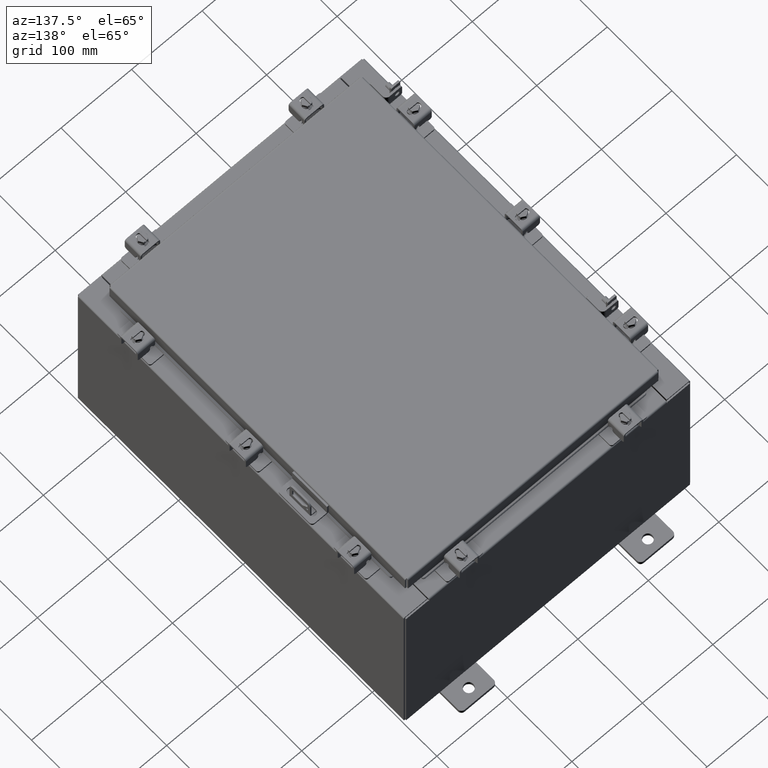
[diagram: clean part render]
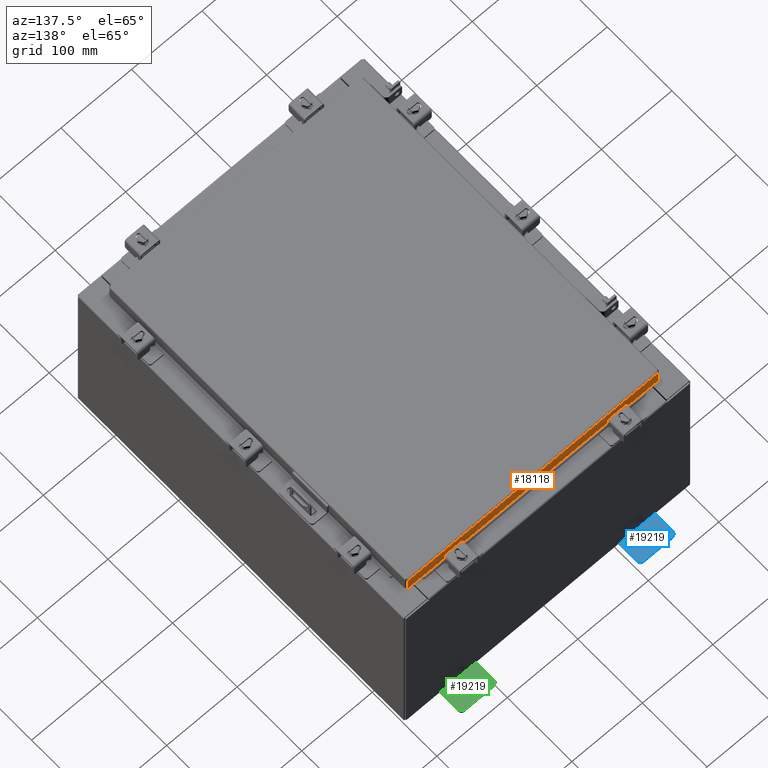
[diagram: same view with three faces highlighted in distinct colors, each labeled with its STEP entity id]
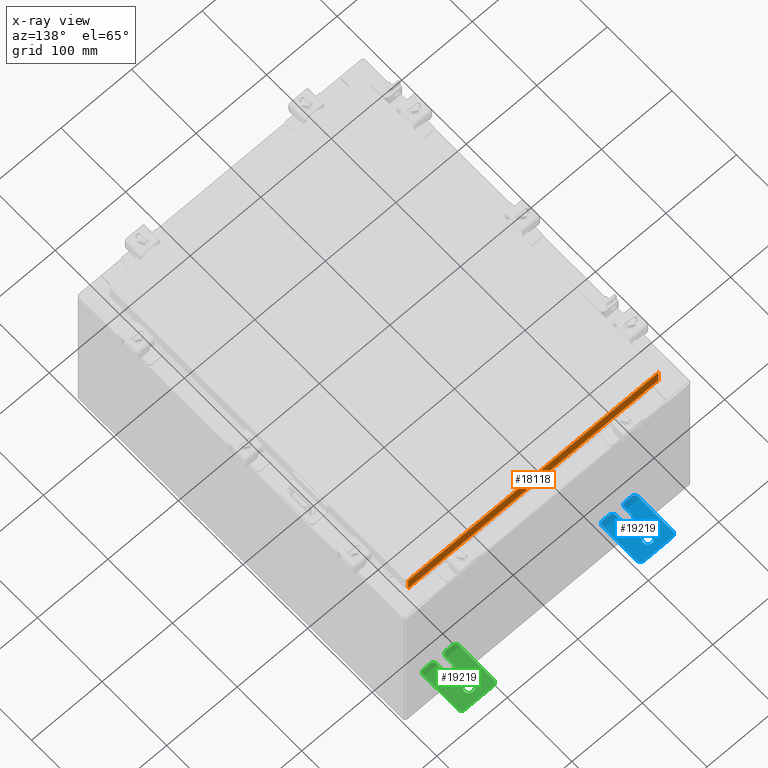
[diagram: x-ray of the same camera — body ghosted, the three highlighted faces saturated]
A machine part, auxiliary view with three faces highlighted in distinct colors.
The next image is the same camera in x-ray (body ghosted, the three faces saturated) — at least one of them is partly hidden behind the body in this view.
Their STEP definitions:

[orange] entity #18118 — the highlighted planar face has unit normal (0, -1, -0).
#8 = VECTOR ( 'NONE', #1733, 39.37007874015748100 ) ;
#481 = DIRECTION ( 'NONE',  ( 0.0000000000000000000, 2.818880942772353800E-015, -1.000000000000000000 ) ) ;
#1550 = CARTESIAN_POINT ( 'NONE',  ( -7.078000000000003800, 9.093999999999999400, -0.8500000000000014200 ) ) ;
#1733 = DIRECTION ( 'NONE',  ( -1.000000000000000000, -1.359980617386811900E-031, -7.719265311286419400E-017 ) ) ;
#1753 = CARTESIAN_POINT ( 'NONE',  ( -6.989157864376273300, 9.093999999999995900, -0.07469999999999978000 ) ) ;
#1901 = VECTOR ( 'NONE', #12192, 39.37007874015748100 ) ;
#1936 = CARTESIAN_POINT ( 'NONE',  ( -6.989157864376273300, 9.093999999999995900, -0.08769999999999951400 ) ) ;
#2395 = ORIENTED_EDGE ( 'NONE', *, *, #10742, .F. ) ;
#2611 = ORIENTED_EDGE ( 'NONE', *, *, #14333, .T. ) ;
#3445 = VERTEX_POINT ( 'NONE', #15096 ) ;
#3724 = VERTEX_POINT ( 'NONE', #11567 ) ;
#3997 = VERTEX_POINT ( 'NONE', #14955 ) ;
#4133 = PLANE ( 'NONE',  #10218 ) ;
#5081 = CARTESIAN_POINT ( 'NONE',  ( 6.239157864376261700, 9.093999999999999400, -0.8500000000000018700 ) ) ;
#7230 = CARTESIAN_POINT ( 'NONE',  ( 6.989157864376266200, 9.093999999999999400, -0.8499999999999996400 ) ) ;
#7672 = DIRECTION ( 'NONE',  ( 3.535949605205710500E-031, -1.000000000000000000, -2.818880942772353800E-015 ) ) ;
#8164 = VECTOR ( 'NONE', #481, 39.37007874015748100 ) ;
#8202 = VECTOR ( 'NONE', #15164, 39.37007874015748100 ) ;
#10085 = LINE ( 'NONE', #1753, #1901 ) ;
#10218 = AXIS2_PLACEMENT_3D ( 'NONE', #17968, #7672, #19675 ) ;
#10387 = CARTESIAN_POINT ( 'NONE',  ( -6.239157864376272400, 9.093999999999999400, -0.8500000000000018700 ) ) ;
#10742 = EDGE_CURVE ( 'NONE', #19494, #16024, #13096, .T. ) ;
#11567 = CARTESIAN_POINT ( 'NONE',  ( -6.239157864376272400, 9.093999999999999400, -0.8500000000000018700 ) ) ;
#11842 = ORIENTED_EDGE ( 'NONE', *, *, #12168, .F. ) ;
#12168 = EDGE_CURVE ( 'NONE', #3997, #22422, #13917, .T. ) ;
#12169 = CARTESIAN_POINT ( 'NONE',  ( -7.078000000000003800, 9.093999999999995900, -0.08770000000000007000 ) ) ;
#12192 = DIRECTION ( 'NONE',  ( -0.0000000000000000000, 2.818880942772353800E-015, -1.000000000000000000 ) ) ;
#12747 = LINE ( 'NONE', #17763, #8164 ) ;
#13096 = LINE ( 'NONE', #1550, #21740 ) ;
#13241 = EDGE_CURVE ( 'NONE', #3445, #3724, #17354, .T. ) ;
#13454 = CARTESIAN_POINT ( 'NONE',  ( -7.078000000000003800, 9.093999999999999400, -0.8500000000000014200 ) ) ;
#13473 = EDGE_CURVE ( 'NONE', #22422, #3445, #10085, .T. ) ;
#13917 = LINE ( 'NONE', #12169, #8 ) ;
#14333 = EDGE_CURVE ( 'NONE', #3997, #16024, #12747, .T. ) ;
#14955 = CARTESIAN_POINT ( 'NONE',  ( 6.989157864376266200, 9.093999999999995900, -0.08769999999999897300 ) ) ;
#15096 = CARTESIAN_POINT ( 'NONE',  ( -6.989157864376273300, 9.093999999999999400, -0.8500000000000014200 ) ) ;
#15164 = DIRECTION ( 'NONE',  ( 1.000000000000000000, 4.379057701015054300E-047, 1.254380613084043100E-016 ) ) ;
#15287 = VECTOR ( 'NONE', #20759, 39.37007874015748100 ) ;
#15333 = ORIENTED_EDGE ( 'NONE', *, *, #13473, .F. ) ;
#15851 = ORIENTED_EDGE ( 'NONE', *, *, #18502, .F. ) ;
#16024 = VERTEX_POINT ( 'NONE', #7230 ) ;
#16354 = LINE ( 'NONE', #10387, #15287 ) ;
#17354 = LINE ( 'NONE', #13454, #8202 ) ;
#17763 = CARTESIAN_POINT ( 'NONE',  ( 6.989157864376265300, 9.093999999999995900, 2.589571694958335700E-014 ) ) ;
#17960 = EDGE_LOOP ( 'NONE', ( #11842, #2611, #2395, #15851, #21130, #15333 ) ) ;
#17968 = CARTESIAN_POINT ( 'NONE',  ( -3.215592570974071400E-030, 9.093999999999995900, 2.589571694958335700E-014 ) ) ;
#18118 = ADVANCED_FACE ( 'NONE', ( #20140 ), #4133, .F. ) ;
#18502 = EDGE_CURVE ( 'NONE', #3724, #19494, #16354, .T. ) ;
#19494 = VERTEX_POINT ( 'NONE', #5081 ) ;
#19675 = DIRECTION ( 'NONE',  ( 0.0000000000000000000, 2.818880942772353800E-015, -1.000000000000000000 ) ) ;
#20140 = FACE_OUTER_BOUND ( 'NONE', #17960, .T. ) ;
#20759 = DIRECTION ( 'NONE',  ( 1.000000000000000000, -0.0000000000000000000, -0.0000000000000000000 ) ) ;
#21130 = ORIENTED_EDGE ( 'NONE', *, *, #13241, .F. ) ;
#21740 = VECTOR ( 'NONE', #22331, 39.37007874015748100 ) ;
#22331 = DIRECTION ( 'NONE',  ( 1.000000000000000000, 4.379057701015054300E-047, 1.254380613084043100E-016 ) ) ;
#22422 = VERTEX_POINT ( 'NONE', #1936 ) ;

[blue] entity #19219 — the highlighted planar face has unit normal (0, 0, 1).
#50 = VECTOR ( 'NONE', #20684, 39.37007874015748100 ) ;
#85 = CARTESIAN_POINT ( 'NONE',  ( 0.0000000000000000000, -0.6249999999999992200, 0.2500000000000005000 ) ) ;
#375 = AXIS2_PLACEMENT_3D ( 'NONE', #15647, #15494, #15347 ) ;
#517 = CARTESIAN_POINT ( 'NONE',  ( 0.0000000000000000000, -1.060000000000001200, 0.9999999999999988900 ) ) ;
#581 = DIRECTION ( 'NONE',  ( -6.556435184794182400E-016, -1.000000000000000000, -1.639108796198545600E-016 ) ) ;
#599 = LINE ( 'NONE', #18949, #50 ) ;
#780 = AXIS2_PLACEMENT_3D ( 'NONE', #1659, #1503, #1431 ) ;
#1104 = VERTEX_POINT ( 'NONE', #19374 ) ;
#1231 = ORIENTED_EDGE ( 'NONE', *, *, #8511, .T. ) ;
#1301 = EDGE_LOOP ( 'NONE', ( #3979, #18891, #19016, #12081, #20039, #13696, #20471, #16323, #20817, #5881, #19090, #14076, #7682, #1231 ) ) ;
#1325 = CARTESIAN_POINT ( 'NONE',  ( 0.0000000000000000000, -1.250000000000003100, 0.4400000000000020000 ) ) ;
#1431 = DIRECTION ( 'NONE',  ( -6.523827964459551700E-016, -1.000000000000000000, 0.0000000000000000000 ) ) ;
#1503 = DIRECTION ( 'NONE',  ( -1.000000000000000000, 6.523827964459549700E-016, 5.163192708025532000E-017 ) ) ;
#1659 = CARTESIAN_POINT ( 'NONE',  ( 4.780733988912460100E-016, -0.6249999999999993300, 5.858939755051854500E-017 ) ) ;
#1724 = CIRCLE ( 'NONE', #20113, 0.2499999999999999200 ) ;
#2053 = CIRCLE ( 'NONE', #21923, 0.1900000000000011100 ) ;
#2094 = VERTEX_POINT ( 'NONE', #2496 ) ;
#2195 = AXIS2_PLACEMENT_3D ( 'NONE', #19101, #8812, #20865 ) ;
#2244 = VERTEX_POINT ( 'NONE', #517 ) ;
#2273 = CARTESIAN_POINT ( 'NONE',  ( 0.0000000000000000000, 1.059999999999993600, -0.8100000000000089400 ) ) ;
#2278 = CIRCLE ( 'NONE', #2195, 0.1900000000000011400 ) ;
#2400 = EDGE_CURVE ( 'NONE', #7145, #13455, #10559, .T. ) ;
#2428 = EDGE_CURVE ( 'NONE', #19589, #9078, #4825, .T. ) ;
#2496 = CARTESIAN_POINT ( 'NONE',  ( 0.0000000000000000000, -1.250000000000004700, -0.4400000000000002200 ) ) ;
#2922 = ORIENTED_EDGE ( 'NONE', *, *, #4963, .F. ) ;
#3048 = LINE ( 'NONE', #19570, #7177 ) ;
#3116 = CARTESIAN_POINT ( 'NONE',  ( 0.0000000000000000000, -1.250000000000002400, 0.8099999999999980500 ) ) ;
#3225 = DIRECTION ( 'NONE',  ( 1.000000000000000000, -0.0000000000000000000, -5.163192708025532000E-017 ) ) ;
#3389 = VECTOR ( 'NONE', #5737, 39.37007874015748100 ) ;
#3741 = DIRECTION ( 'NONE',  ( 1.000000000000000000, 0.0000000000000000000, -0.0000000000000000000 ) ) ;
#3943 = DIRECTION ( 'NONE',  ( -0.0000000000000000000, 0.0000000000000000000, -1.000000000000000000 ) ) ;
#3979 = ORIENTED_EDGE ( 'NONE', *, *, #18068, .T. ) ;
#4037 = DIRECTION ( 'NONE',  ( 0.0000000000000000000, 0.0000000000000000000, -1.000000000000000000 ) ) ;
#4825 = CIRCLE ( 'NONE', #780, 0.2499999999999999200 ) ;
#4963 = EDGE_CURVE ( 'NONE', #1104, #16336, #11723, .T. ) ;
#5737 = DIRECTION ( 'NONE',  ( 0.0000000000000000000, -1.000000000000000000, 1.639108796198558100E-015 ) ) ;
#5881 = ORIENTED_EDGE ( 'NONE', *, *, #2400, .T. ) ;
#6231 = EDGE_CURVE ( 'NONE', #15792, #19589, #19699, .T. ) ;
#6246 = CARTESIAN_POINT ( 'NONE',  ( 1.928684683526972300E-016, -1.060000000000002100, 0.2500000000000005000 ) ) ;
#6962 = CARTESIAN_POINT ( 'NONE',  ( 1.928684683526964400E-016, -1.060000000000003400, -0.2499999999999994400 ) ) ;
#7043 = DIRECTION ( 'NONE',  ( 0.0000000000000000000, 1.000000000000000000, -1.639108796198558100E-015 ) ) ;
#7145 = VERTEX_POINT ( 'NONE', #10921 ) ;
#7177 = VECTOR ( 'NONE', #581, 39.37007874015748100 ) ;
#7331 = CARTESIAN_POINT ( 'NONE',  ( 0.0000000000000000000, -1.060000000000001600, 0.8099999999999978300 ) ) ;
#7518 = CIRCLE ( 'NONE', #21899, 0.1900000000000011100 ) ;
#7523 = CARTESIAN_POINT ( 'NONE',  ( 0.0000000000000000000, 1.249999999999997600, 0.9999999999999951200 ) ) ;
#7547 = CARTESIAN_POINT ( 'NONE',  ( 0.0000000000000000000, 1.059999999999996500, 0.9999999999999953400 ) ) ;
#7575 = EDGE_CURVE ( 'NONE', #13455, #19965, #15078, .T. ) ;
#7682 = ORIENTED_EDGE ( 'NONE', *, *, #18178, .T. ) ;
#8132 = CARTESIAN_POINT ( 'NONE',  ( 4.168508244714285900E-016, 0.6249999999999992200, 0.2499999999999999200 ) ) ;
#8399 = DIRECTION ( 'NONE',  ( 0.0000000000000000000, 0.0000000000000000000, -1.000000000000000000 ) ) ;
#8511 = EDGE_CURVE ( 'NONE', #15466, #17481, #18285, .T. ) ;
#8539 = DIRECTION ( 'NONE',  ( 1.000000000000000000, 0.0000000000000000000, -0.0000000000000000000 ) ) ;
#8550 = FACE_OUTER_BOUND ( 'NONE', #1301, .T. ) ;
#8605 = CARTESIAN_POINT ( 'NONE',  ( 0.0000000000000000000, -1.060000000000004100, -0.8100000000000050500 ) ) ;
#8622 = EDGE_CURVE ( 'NONE', #19965, #11545, #7518, .T. ) ;
#8627 = CARTESIAN_POINT ( 'NONE',  ( 0.0000000000000000000, -1.060000000000003400, -0.4400000000000005000 ) ) ;
#8812 = DIRECTION ( 'NONE',  ( 1.000000000000000000, 0.0000000000000000000, -0.0000000000000000000 ) ) ;
#9064 = DIRECTION ( 'NONE',  ( 0.0000000000000000000, 0.0000000000000000000, -1.000000000000000000 ) ) ;
#9078 = VERTEX_POINT ( 'NONE', #13823 ) ;
#9488 = AXIS2_PLACEMENT_3D ( 'NONE', #8627, #20658, #10373 ) ;
#9703 = CARTESIAN_POINT ( 'NONE',  ( 0.0000000000000000000, 1.059999999999993400, -1.000000000000010000 ) ) ;
#9768 = EDGE_CURVE ( 'NONE', #16336, #1104, #1724, .T. ) ;
#9862 = EDGE_CURVE ( 'NONE', #2094, #7145, #599, .T. ) ;
#9913 = LINE ( 'NONE', #11362, #18506 ) ;
#10373 = DIRECTION ( 'NONE',  ( 0.0000000000000000000, 0.0000000000000000000, -1.000000000000000000 ) ) ;
#10530 = VECTOR ( 'NONE', #7043, 39.37007874015748100 ) ;
#10559 = CIRCLE ( 'NONE', #22157, 0.1900000000000011100 ) ;
#10729 = CARTESIAN_POINT ( 'NONE',  ( 6.829619984160658000E-017, -1.250000000000003800, 0.2500000000000005000 ) ) ;
#10894 = LINE ( 'NONE', #14380, #14898 ) ;
#10921 = CARTESIAN_POINT ( 'NONE',  ( 0.0000000000000000000, -1.250000000000005300, -0.8100000000000047200 ) ) ;
#11362 = CARTESIAN_POINT ( 'NONE',  ( 0.0000000000000000000, -1.250000000000002200, 0.9999999999999992200 ) ) ;
#11399 = EDGE_CURVE ( 'NONE', #11437, #2094, #14467, .T. ) ;
#11437 = VERTEX_POINT ( 'NONE', #6962 ) ;
#11489 = AXIS2_PLACEMENT_3D ( 'NONE', #14144, #3741, #15839 ) ;
#11545 = VERTEX_POINT ( 'NONE', #12341 ) ;
#11688 = EDGE_CURVE ( 'NONE', #9078, #11437, #3048, .T. ) ;
#11723 = CIRCLE ( 'NONE', #375, 0.2499999999999999200 ) ;
#12081 = ORIENTED_EDGE ( 'NONE', *, *, #19578, .T. ) ;
#12341 = CARTESIAN_POINT ( 'NONE',  ( 0.0000000000000000000, 1.249999999999994700, -0.8100000000000092700 ) ) ;
#12557 = VERTEX_POINT ( 'NONE', #1325 ) ;
#12616 = CARTESIAN_POINT ( 'NONE',  ( 0.0000000000000000000, 0.0000000000000000000, 0.0000000000000000000 ) ) ;
#12647 = LINE ( 'NONE', #7523, #3389 ) ;
#13455 = VERTEX_POINT ( 'NONE', #20655 ) ;
#13644 = CARTESIAN_POINT ( 'NONE',  ( 4.039428427013647300E-016, 0.6249999999999992200, -9.783840404509077400E-018 ) ) ;
#13696 = ORIENTED_EDGE ( 'NONE', *, *, #2428, .T. ) ;
#13823 = CARTESIAN_POINT ( 'NONE',  ( 4.780733988912460100E-016, -0.6249999999999993300, -0.2499999999999998600 ) ) ;
#13888 = EDGE_LOOP ( 'NONE', ( #2922, #21437 ) ) ;
#13911 = CARTESIAN_POINT ( 'NONE',  ( 0.0000000000000000000, -1.250000000000005600, -1.000000000000006200 ) ) ;
#14063 = CARTESIAN_POINT ( 'NONE',  ( 0.0000000000000000000, 1.249999999999997300, 0.8099999999999935000 ) ) ;
#14076 = ORIENTED_EDGE ( 'NONE', *, *, #8622, .T. ) ;
#14144 = CARTESIAN_POINT ( 'NONE',  ( 0.0000000000000000000, 1.059999999999996300, 0.8099999999999938400 ) ) ;
#14334 = PLANE ( 'NONE',  #16994 ) ;
#14380 = CARTESIAN_POINT ( 'NONE',  ( 0.0000000000000000000, 1.249999999999994200, -1.000000000000010400 ) ) ;
#14438 = DIRECTION ( 'NONE',  ( 1.000000000000000000, 0.0000000000000000000, -0.0000000000000000000 ) ) ;
#14467 = CIRCLE ( 'NONE', #9488, 0.1900000000000011100 ) ;
#14617 = VECTOR ( 'NONE', #15891, 39.37007874015748100 ) ;
#14898 = VECTOR ( 'NONE', #16074, 39.37007874015748100 ) ;
#15078 = LINE ( 'NONE', #13911, #10530 ) ;
#15296 = VERTEX_POINT ( 'NONE', #3116 ) ;
#15340 = DIRECTION ( 'NONE',  ( -5.163192708025533800E-017, 0.0000000000000000000, -1.000000000000000000 ) ) ;
#15347 = DIRECTION ( 'NONE',  ( -5.163192708025533800E-017, 0.0000000000000000000, -1.000000000000000000 ) ) ;
#15466 = VERTEX_POINT ( 'NONE', #14063 ) ;
#15494 = DIRECTION ( 'NONE',  ( 1.000000000000000000, -0.0000000000000000000, -5.163192708025532000E-017 ) ) ;
#15647 = CARTESIAN_POINT ( 'NONE',  ( 4.039428427013647300E-016, 0.6249999999999992200, -9.783840404509077400E-018 ) ) ;
#15792 = VERTEX_POINT ( 'NONE', #6246 ) ;
#15839 = DIRECTION ( 'NONE',  ( 0.0000000000000000000, 0.0000000000000000000, -1.000000000000000000 ) ) ;
#15891 = DIRECTION ( 'NONE',  ( 6.556435184794182400E-016, 1.000000000000000000, 0.0000000000000000000 ) ) ;
#15965 = DIRECTION ( 'NONE',  ( 1.000000000000000000, 0.0000000000000000000, -0.0000000000000000000 ) ) ;
#16074 = DIRECTION ( 'NONE',  ( 0.0000000000000000000, 1.639108796198553600E-015, 1.000000000000000000 ) ) ;
#16323 = ORIENTED_EDGE ( 'NONE', *, *, #11399, .T. ) ;
#16336 = VERTEX_POINT ( 'NONE', #8132 ) ;
#16994 = AXIS2_PLACEMENT_3D ( 'NONE', #12616, #15965, #3943 ) ;
#17376 = EDGE_CURVE ( 'NONE', #2244, #15296, #2053, .T. ) ;
#17481 = VERTEX_POINT ( 'NONE', #7547 ) ;
#18068 = EDGE_CURVE ( 'NONE', #17481, #2244, #12647, .T. ) ;
#18178 = EDGE_CURVE ( 'NONE', #11545, #15466, #10894, .T. ) ;
#18242 = FACE_BOUND ( 'NONE', #13888, .T. ) ;
#18285 = CIRCLE ( 'NONE', #11489, 0.1900000000000011100 ) ;
#18506 = VECTOR ( 'NONE', #21681, 39.37007874015748100 ) ;
#18879 = EDGE_CURVE ( 'NONE', #15296, #12557, #9913, .T. ) ;
#18891 = ORIENTED_EDGE ( 'NONE', *, *, #17376, .T. ) ;
#18949 = CARTESIAN_POINT ( 'NONE',  ( 0.0000000000000000000, -1.250000000000002200, 0.9999999999999992200 ) ) ;
#19016 = ORIENTED_EDGE ( 'NONE', *, *, #18879, .T. ) ;
#19090 = ORIENTED_EDGE ( 'NONE', *, *, #7575, .T. ) ;
#19101 = CARTESIAN_POINT ( 'NONE',  ( 0.0000000000000000000, -1.060000000000002100, 0.4400000000000016700 ) ) ;
#19219 = ADVANCED_FACE ( 'NONE', ( #18242, #8550 ), #14334, .T. ) ;
#19345 = DIRECTION ( 'NONE',  ( 1.000000000000000000, 0.0000000000000000000, -0.0000000000000000000 ) ) ;
#19374 = CARTESIAN_POINT ( 'NONE',  ( 3.910348609313009100E-016, 0.6249999999999992200, -0.2499999999999999200 ) ) ;
#19570 = CARTESIAN_POINT ( 'NONE',  ( 4.780733988912460100E-016, -0.6249999999999993300, -0.2499999999999993900 ) ) ;
#19578 = EDGE_CURVE ( 'NONE', #12557, #15792, #2278, .T. ) ;
#19589 = VERTEX_POINT ( 'NONE', #85 ) ;
#19699 = LINE ( 'NONE', #10729, #14617 ) ;
#19965 = VERTEX_POINT ( 'NONE', #9703 ) ;
#20039 = ORIENTED_EDGE ( 'NONE', *, *, #6231, .T. ) ;
#20113 = AXIS2_PLACEMENT_3D ( 'NONE', #13644, #3225, #15340 ) ;
#20471 = ORIENTED_EDGE ( 'NONE', *, *, #11688, .T. ) ;
#20655 = CARTESIAN_POINT ( 'NONE',  ( 0.0000000000000000000, -1.060000000000004500, -1.000000000000006400 ) ) ;
#20658 = DIRECTION ( 'NONE',  ( 1.000000000000000000, 0.0000000000000000000, -0.0000000000000000000 ) ) ;
#20684 = DIRECTION ( 'NONE',  ( 0.0000000000000000000, -1.639108796198553600E-015, -1.000000000000000000 ) ) ;
#20817 = ORIENTED_EDGE ( 'NONE', *, *, #9862, .T. ) ;
#20865 = DIRECTION ( 'NONE',  ( 0.0000000000000000000, 0.0000000000000000000, -1.000000000000000000 ) ) ;
#21437 = ORIENTED_EDGE ( 'NONE', *, *, #9768, .F. ) ;
#21681 = DIRECTION ( 'NONE',  ( 0.0000000000000000000, -1.639108796198553600E-015, -1.000000000000000000 ) ) ;
#21899 = AXIS2_PLACEMENT_3D ( 'NONE', #2273, #14438, #4037 ) ;
#21923 = AXIS2_PLACEMENT_3D ( 'NONE', #7331, #19345, #9064 ) ;
#22157 = AXIS2_PLACEMENT_3D ( 'NONE', #8605, #8539, #8399 ) ;

[green] entity #19219 — the highlighted planar face has unit normal (0, 0, 1).
#50 = VECTOR ( 'NONE', #20684, 39.37007874015748100 ) ;
#85 = CARTESIAN_POINT ( 'NONE',  ( 0.0000000000000000000, -0.6249999999999992200, 0.2500000000000005000 ) ) ;
#375 = AXIS2_PLACEMENT_3D ( 'NONE', #15647, #15494, #15347 ) ;
#517 = CARTESIAN_POINT ( 'NONE',  ( 0.0000000000000000000, -1.060000000000001200, 0.9999999999999988900 ) ) ;
#581 = DIRECTION ( 'NONE',  ( -6.556435184794182400E-016, -1.000000000000000000, -1.639108796198545600E-016 ) ) ;
#599 = LINE ( 'NONE', #18949, #50 ) ;
#780 = AXIS2_PLACEMENT_3D ( 'NONE', #1659, #1503, #1431 ) ;
#1104 = VERTEX_POINT ( 'NONE', #19374 ) ;
#1231 = ORIENTED_EDGE ( 'NONE', *, *, #8511, .T. ) ;
#1301 = EDGE_LOOP ( 'NONE', ( #3979, #18891, #19016, #12081, #20039, #13696, #20471, #16323, #20817, #5881, #19090, #14076, #7682, #1231 ) ) ;
#1325 = CARTESIAN_POINT ( 'NONE',  ( 0.0000000000000000000, -1.250000000000003100, 0.4400000000000020000 ) ) ;
#1431 = DIRECTION ( 'NONE',  ( -6.523827964459551700E-016, -1.000000000000000000, 0.0000000000000000000 ) ) ;
#1503 = DIRECTION ( 'NONE',  ( -1.000000000000000000, 6.523827964459549700E-016, 5.163192708025532000E-017 ) ) ;
#1659 = CARTESIAN_POINT ( 'NONE',  ( 4.780733988912460100E-016, -0.6249999999999993300, 5.858939755051854500E-017 ) ) ;
#1724 = CIRCLE ( 'NONE', #20113, 0.2499999999999999200 ) ;
#2053 = CIRCLE ( 'NONE', #21923, 0.1900000000000011100 ) ;
#2094 = VERTEX_POINT ( 'NONE', #2496 ) ;
#2195 = AXIS2_PLACEMENT_3D ( 'NONE', #19101, #8812, #20865 ) ;
#2244 = VERTEX_POINT ( 'NONE', #517 ) ;
#2273 = CARTESIAN_POINT ( 'NONE',  ( 0.0000000000000000000, 1.059999999999993600, -0.8100000000000089400 ) ) ;
#2278 = CIRCLE ( 'NONE', #2195, 0.1900000000000011400 ) ;
#2400 = EDGE_CURVE ( 'NONE', #7145, #13455, #10559, .T. ) ;
#2428 = EDGE_CURVE ( 'NONE', #19589, #9078, #4825, .T. ) ;
#2496 = CARTESIAN_POINT ( 'NONE',  ( 0.0000000000000000000, -1.250000000000004700, -0.4400000000000002200 ) ) ;
#2922 = ORIENTED_EDGE ( 'NONE', *, *, #4963, .F. ) ;
#3048 = LINE ( 'NONE', #19570, #7177 ) ;
#3116 = CARTESIAN_POINT ( 'NONE',  ( 0.0000000000000000000, -1.250000000000002400, 0.8099999999999980500 ) ) ;
#3225 = DIRECTION ( 'NONE',  ( 1.000000000000000000, -0.0000000000000000000, -5.163192708025532000E-017 ) ) ;
#3389 = VECTOR ( 'NONE', #5737, 39.37007874015748100 ) ;
#3741 = DIRECTION ( 'NONE',  ( 1.000000000000000000, 0.0000000000000000000, -0.0000000000000000000 ) ) ;
#3943 = DIRECTION ( 'NONE',  ( -0.0000000000000000000, 0.0000000000000000000, -1.000000000000000000 ) ) ;
#3979 = ORIENTED_EDGE ( 'NONE', *, *, #18068, .T. ) ;
#4037 = DIRECTION ( 'NONE',  ( 0.0000000000000000000, 0.0000000000000000000, -1.000000000000000000 ) ) ;
#4825 = CIRCLE ( 'NONE', #780, 0.2499999999999999200 ) ;
#4963 = EDGE_CURVE ( 'NONE', #1104, #16336, #11723, .T. ) ;
#5737 = DIRECTION ( 'NONE',  ( 0.0000000000000000000, -1.000000000000000000, 1.639108796198558100E-015 ) ) ;
#5881 = ORIENTED_EDGE ( 'NONE', *, *, #2400, .T. ) ;
#6231 = EDGE_CURVE ( 'NONE', #15792, #19589, #19699, .T. ) ;
#6246 = CARTESIAN_POINT ( 'NONE',  ( 1.928684683526972300E-016, -1.060000000000002100, 0.2500000000000005000 ) ) ;
#6962 = CARTESIAN_POINT ( 'NONE',  ( 1.928684683526964400E-016, -1.060000000000003400, -0.2499999999999994400 ) ) ;
#7043 = DIRECTION ( 'NONE',  ( 0.0000000000000000000, 1.000000000000000000, -1.639108796198558100E-015 ) ) ;
#7145 = VERTEX_POINT ( 'NONE', #10921 ) ;
#7177 = VECTOR ( 'NONE', #581, 39.37007874015748100 ) ;
#7331 = CARTESIAN_POINT ( 'NONE',  ( 0.0000000000000000000, -1.060000000000001600, 0.8099999999999978300 ) ) ;
#7518 = CIRCLE ( 'NONE', #21899, 0.1900000000000011100 ) ;
#7523 = CARTESIAN_POINT ( 'NONE',  ( 0.0000000000000000000, 1.249999999999997600, 0.9999999999999951200 ) ) ;
#7547 = CARTESIAN_POINT ( 'NONE',  ( 0.0000000000000000000, 1.059999999999996500, 0.9999999999999953400 ) ) ;
#7575 = EDGE_CURVE ( 'NONE', #13455, #19965, #15078, .T. ) ;
#7682 = ORIENTED_EDGE ( 'NONE', *, *, #18178, .T. ) ;
#8132 = CARTESIAN_POINT ( 'NONE',  ( 4.168508244714285900E-016, 0.6249999999999992200, 0.2499999999999999200 ) ) ;
#8399 = DIRECTION ( 'NONE',  ( 0.0000000000000000000, 0.0000000000000000000, -1.000000000000000000 ) ) ;
#8511 = EDGE_CURVE ( 'NONE', #15466, #17481, #18285, .T. ) ;
#8539 = DIRECTION ( 'NONE',  ( 1.000000000000000000, 0.0000000000000000000, -0.0000000000000000000 ) ) ;
#8550 = FACE_OUTER_BOUND ( 'NONE', #1301, .T. ) ;
#8605 = CARTESIAN_POINT ( 'NONE',  ( 0.0000000000000000000, -1.060000000000004100, -0.8100000000000050500 ) ) ;
#8622 = EDGE_CURVE ( 'NONE', #19965, #11545, #7518, .T. ) ;
#8627 = CARTESIAN_POINT ( 'NONE',  ( 0.0000000000000000000, -1.060000000000003400, -0.4400000000000005000 ) ) ;
#8812 = DIRECTION ( 'NONE',  ( 1.000000000000000000, 0.0000000000000000000, -0.0000000000000000000 ) ) ;
#9064 = DIRECTION ( 'NONE',  ( 0.0000000000000000000, 0.0000000000000000000, -1.000000000000000000 ) ) ;
#9078 = VERTEX_POINT ( 'NONE', #13823 ) ;
#9488 = AXIS2_PLACEMENT_3D ( 'NONE', #8627, #20658, #10373 ) ;
#9703 = CARTESIAN_POINT ( 'NONE',  ( 0.0000000000000000000, 1.059999999999993400, -1.000000000000010000 ) ) ;
#9768 = EDGE_CURVE ( 'NONE', #16336, #1104, #1724, .T. ) ;
#9862 = EDGE_CURVE ( 'NONE', #2094, #7145, #599, .T. ) ;
#9913 = LINE ( 'NONE', #11362, #18506 ) ;
#10373 = DIRECTION ( 'NONE',  ( 0.0000000000000000000, 0.0000000000000000000, -1.000000000000000000 ) ) ;
#10530 = VECTOR ( 'NONE', #7043, 39.37007874015748100 ) ;
#10559 = CIRCLE ( 'NONE', #22157, 0.1900000000000011100 ) ;
#10729 = CARTESIAN_POINT ( 'NONE',  ( 6.829619984160658000E-017, -1.250000000000003800, 0.2500000000000005000 ) ) ;
#10894 = LINE ( 'NONE', #14380, #14898 ) ;
#10921 = CARTESIAN_POINT ( 'NONE',  ( 0.0000000000000000000, -1.250000000000005300, -0.8100000000000047200 ) ) ;
#11362 = CARTESIAN_POINT ( 'NONE',  ( 0.0000000000000000000, -1.250000000000002200, 0.9999999999999992200 ) ) ;
#11399 = EDGE_CURVE ( 'NONE', #11437, #2094, #14467, .T. ) ;
#11437 = VERTEX_POINT ( 'NONE', #6962 ) ;
#11489 = AXIS2_PLACEMENT_3D ( 'NONE', #14144, #3741, #15839 ) ;
#11545 = VERTEX_POINT ( 'NONE', #12341 ) ;
#11688 = EDGE_CURVE ( 'NONE', #9078, #11437, #3048, .T. ) ;
#11723 = CIRCLE ( 'NONE', #375, 0.2499999999999999200 ) ;
#12081 = ORIENTED_EDGE ( 'NONE', *, *, #19578, .T. ) ;
#12341 = CARTESIAN_POINT ( 'NONE',  ( 0.0000000000000000000, 1.249999999999994700, -0.8100000000000092700 ) ) ;
#12557 = VERTEX_POINT ( 'NONE', #1325 ) ;
#12616 = CARTESIAN_POINT ( 'NONE',  ( 0.0000000000000000000, 0.0000000000000000000, 0.0000000000000000000 ) ) ;
#12647 = LINE ( 'NONE', #7523, #3389 ) ;
#13455 = VERTEX_POINT ( 'NONE', #20655 ) ;
#13644 = CARTESIAN_POINT ( 'NONE',  ( 4.039428427013647300E-016, 0.6249999999999992200, -9.783840404509077400E-018 ) ) ;
#13696 = ORIENTED_EDGE ( 'NONE', *, *, #2428, .T. ) ;
#13823 = CARTESIAN_POINT ( 'NONE',  ( 4.780733988912460100E-016, -0.6249999999999993300, -0.2499999999999998600 ) ) ;
#13888 = EDGE_LOOP ( 'NONE', ( #2922, #21437 ) ) ;
#13911 = CARTESIAN_POINT ( 'NONE',  ( 0.0000000000000000000, -1.250000000000005600, -1.000000000000006200 ) ) ;
#14063 = CARTESIAN_POINT ( 'NONE',  ( 0.0000000000000000000, 1.249999999999997300, 0.8099999999999935000 ) ) ;
#14076 = ORIENTED_EDGE ( 'NONE', *, *, #8622, .T. ) ;
#14144 = CARTESIAN_POINT ( 'NONE',  ( 0.0000000000000000000, 1.059999999999996300, 0.8099999999999938400 ) ) ;
#14334 = PLANE ( 'NONE',  #16994 ) ;
#14380 = CARTESIAN_POINT ( 'NONE',  ( 0.0000000000000000000, 1.249999999999994200, -1.000000000000010400 ) ) ;
#14438 = DIRECTION ( 'NONE',  ( 1.000000000000000000, 0.0000000000000000000, -0.0000000000000000000 ) ) ;
#14467 = CIRCLE ( 'NONE', #9488, 0.1900000000000011100 ) ;
#14617 = VECTOR ( 'NONE', #15891, 39.37007874015748100 ) ;
#14898 = VECTOR ( 'NONE', #16074, 39.37007874015748100 ) ;
#15078 = LINE ( 'NONE', #13911, #10530 ) ;
#15296 = VERTEX_POINT ( 'NONE', #3116 ) ;
#15340 = DIRECTION ( 'NONE',  ( -5.163192708025533800E-017, 0.0000000000000000000, -1.000000000000000000 ) ) ;
#15347 = DIRECTION ( 'NONE',  ( -5.163192708025533800E-017, 0.0000000000000000000, -1.000000000000000000 ) ) ;
#15466 = VERTEX_POINT ( 'NONE', #14063 ) ;
#15494 = DIRECTION ( 'NONE',  ( 1.000000000000000000, -0.0000000000000000000, -5.163192708025532000E-017 ) ) ;
#15647 = CARTESIAN_POINT ( 'NONE',  ( 4.039428427013647300E-016, 0.6249999999999992200, -9.783840404509077400E-018 ) ) ;
#15792 = VERTEX_POINT ( 'NONE', #6246 ) ;
#15839 = DIRECTION ( 'NONE',  ( 0.0000000000000000000, 0.0000000000000000000, -1.000000000000000000 ) ) ;
#15891 = DIRECTION ( 'NONE',  ( 6.556435184794182400E-016, 1.000000000000000000, 0.0000000000000000000 ) ) ;
#15965 = DIRECTION ( 'NONE',  ( 1.000000000000000000, 0.0000000000000000000, -0.0000000000000000000 ) ) ;
#16074 = DIRECTION ( 'NONE',  ( 0.0000000000000000000, 1.639108796198553600E-015, 1.000000000000000000 ) ) ;
#16323 = ORIENTED_EDGE ( 'NONE', *, *, #11399, .T. ) ;
#16336 = VERTEX_POINT ( 'NONE', #8132 ) ;
#16994 = AXIS2_PLACEMENT_3D ( 'NONE', #12616, #15965, #3943 ) ;
#17376 = EDGE_CURVE ( 'NONE', #2244, #15296, #2053, .T. ) ;
#17481 = VERTEX_POINT ( 'NONE', #7547 ) ;
#18068 = EDGE_CURVE ( 'NONE', #17481, #2244, #12647, .T. ) ;
#18178 = EDGE_CURVE ( 'NONE', #11545, #15466, #10894, .T. ) ;
#18242 = FACE_BOUND ( 'NONE', #13888, .T. ) ;
#18285 = CIRCLE ( 'NONE', #11489, 0.1900000000000011100 ) ;
#18506 = VECTOR ( 'NONE', #21681, 39.37007874015748100 ) ;
#18879 = EDGE_CURVE ( 'NONE', #15296, #12557, #9913, .T. ) ;
#18891 = ORIENTED_EDGE ( 'NONE', *, *, #17376, .T. ) ;
#18949 = CARTESIAN_POINT ( 'NONE',  ( 0.0000000000000000000, -1.250000000000002200, 0.9999999999999992200 ) ) ;
#19016 = ORIENTED_EDGE ( 'NONE', *, *, #18879, .T. ) ;
#19090 = ORIENTED_EDGE ( 'NONE', *, *, #7575, .T. ) ;
#19101 = CARTESIAN_POINT ( 'NONE',  ( 0.0000000000000000000, -1.060000000000002100, 0.4400000000000016700 ) ) ;
#19219 = ADVANCED_FACE ( 'NONE', ( #18242, #8550 ), #14334, .T. ) ;
#19345 = DIRECTION ( 'NONE',  ( 1.000000000000000000, 0.0000000000000000000, -0.0000000000000000000 ) ) ;
#19374 = CARTESIAN_POINT ( 'NONE',  ( 3.910348609313009100E-016, 0.6249999999999992200, -0.2499999999999999200 ) ) ;
#19570 = CARTESIAN_POINT ( 'NONE',  ( 4.780733988912460100E-016, -0.6249999999999993300, -0.2499999999999993900 ) ) ;
#19578 = EDGE_CURVE ( 'NONE', #12557, #15792, #2278, .T. ) ;
#19589 = VERTEX_POINT ( 'NONE', #85 ) ;
#19699 = LINE ( 'NONE', #10729, #14617 ) ;
#19965 = VERTEX_POINT ( 'NONE', #9703 ) ;
#20039 = ORIENTED_EDGE ( 'NONE', *, *, #6231, .T. ) ;
#20113 = AXIS2_PLACEMENT_3D ( 'NONE', #13644, #3225, #15340 ) ;
#20471 = ORIENTED_EDGE ( 'NONE', *, *, #11688, .T. ) ;
#20655 = CARTESIAN_POINT ( 'NONE',  ( 0.0000000000000000000, -1.060000000000004500, -1.000000000000006400 ) ) ;
#20658 = DIRECTION ( 'NONE',  ( 1.000000000000000000, 0.0000000000000000000, -0.0000000000000000000 ) ) ;
#20684 = DIRECTION ( 'NONE',  ( 0.0000000000000000000, -1.639108796198553600E-015, -1.000000000000000000 ) ) ;
#20817 = ORIENTED_EDGE ( 'NONE', *, *, #9862, .T. ) ;
#20865 = DIRECTION ( 'NONE',  ( 0.0000000000000000000, 0.0000000000000000000, -1.000000000000000000 ) ) ;
#21437 = ORIENTED_EDGE ( 'NONE', *, *, #9768, .F. ) ;
#21681 = DIRECTION ( 'NONE',  ( 0.0000000000000000000, -1.639108796198553600E-015, -1.000000000000000000 ) ) ;
#21899 = AXIS2_PLACEMENT_3D ( 'NONE', #2273, #14438, #4037 ) ;
#21923 = AXIS2_PLACEMENT_3D ( 'NONE', #7331, #19345, #9064 ) ;
#22157 = AXIS2_PLACEMENT_3D ( 'NONE', #8605, #8539, #8399 ) ;